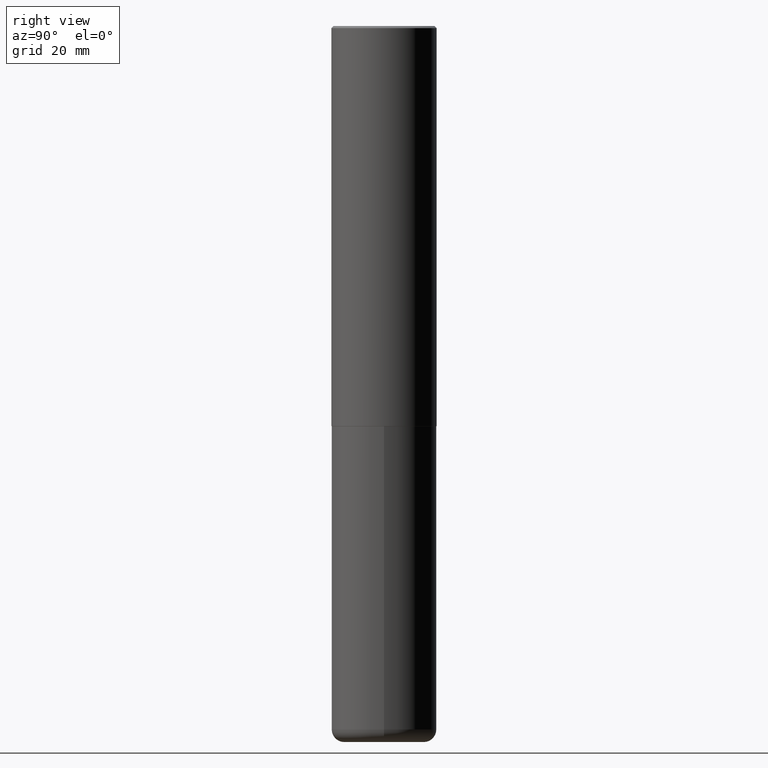
[diagram: clean part render]
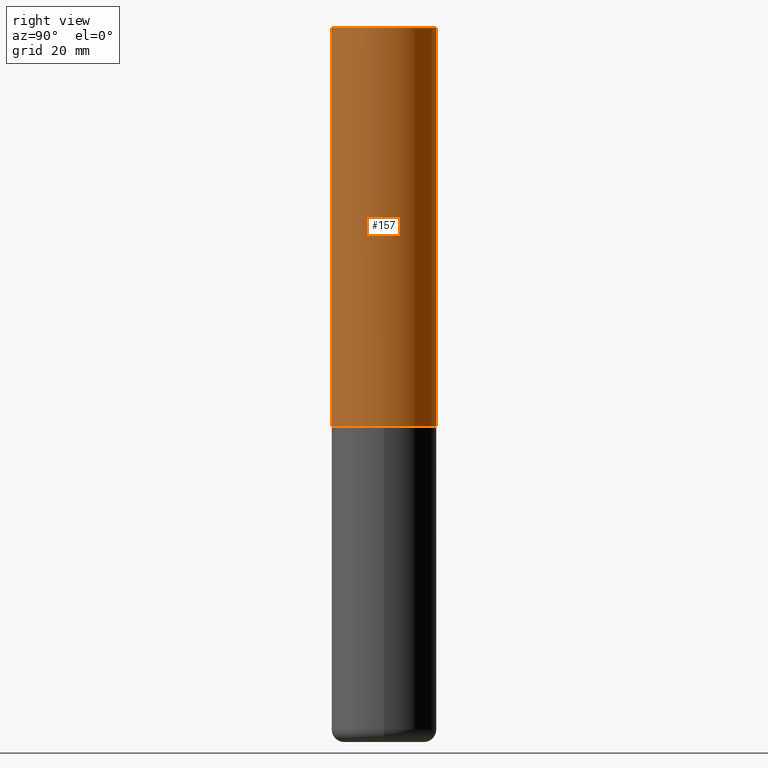
[diagram: same view with one face highlighted and labeled with its STEP entity id]
A machine part, right view. The second image highlights one B-rep face of the part: STEP entity #157.
In plain terms, the highlighted cylindrical surface (partial cylindrical patch) has radius 12.5006 mm, axis along (-0, 0, 1).
Its self-contained STEP definition (entity closure, byte-faithful):
#4 = EDGE_CURVE ( 'NONE', #90, #194, #148, .T. ) ;
#28 = AXIS2_PLACEMENT_3D ( 'NONE', #222, #156, #353 ) ;
#42 = CARTESIAN_POINT ( 'NONE',  ( 0.000000000000000000, 0.000000000000000000, 0.000000000000000000 ) ) ;
#54 = CIRCLE ( 'NONE', #335, 0.4921500000000003650 ) ;
#75 = EDGE_CURVE ( 'NONE', #79, #178, #320, .T. ) ;
#76 = VECTOR ( 'NONE', #315, 39.37007874015748143 ) ;
#79 = VERTEX_POINT ( 'NONE', #247 ) ;
#90 = VERTEX_POINT ( 'NONE', #376 ) ;
#108 = EDGE_CURVE ( 'NONE', #178, #194, #250, .T. ) ;
#117 = DIRECTION ( 'NONE',  ( -2.445976594451651672E-29, 3.490754157143982552E-15, 1.000000000000000000 ) ) ;
#123 = CARTESIAN_POINT ( 'NONE',  ( 3.436665081823295777E-15, 0.4921499999999998098, -0.02000000000000182188 ) ) ;
#125 = EDGE_LOOP ( 'NONE', ( #265, #277, #382, #139 ) ) ;
#139 = ORIENTED_EDGE ( 'NONE', *, *, #75, .F. ) ;
#148 = LINE ( 'NONE', #281, #76 ) ;
#156 = DIRECTION ( 'NONE',  ( -2.445976594451651952E-29, 3.490754157143982552E-15, 1.000000000000000000 ) ) ;
#157 = ADVANCED_FACE ( 'NONE', ( #243 ), #332, .T. ) ;
#169 = DIRECTION ( 'NONE',  ( -6.982962677686265922E-15, -1.000000000000000000, 3.490754157143982552E-15 ) ) ;
#178 = VERTEX_POINT ( 'NONE', #415 ) ;
#194 = VERTEX_POINT ( 'NONE', #123 ) ;
#218 = VECTOR ( 'NONE', #117, 39.37007874015748143 ) ;
#222 = CARTESIAN_POINT ( 'NONE',  ( 4.891953188903329688E-31, -6.981508314288001687E-17, -0.02000000000000010797 ) ) ;
#243 = FACE_OUTER_BOUND ( 'NONE', #125, .T. ) ;
#247 = CARTESIAN_POINT ( 'NONE',  ( -3.436665081823207030E-15, -0.4921500000000134101, -3.739099999999998758 ) ) ;
#250 = CIRCLE ( 'NONE', #28, 0.4921499999999999209 ) ;
#253 = DIRECTION ( 'NONE',  ( -2.445976594451651952E-29, 3.490754157143982552E-15, 1.000000000000000000 ) ) ;
#265 = ORIENTED_EDGE ( 'NONE', *, *, #345, .T. ) ;
#277 = ORIENTED_EDGE ( 'NONE', *, *, #4, .T. ) ;
#281 = CARTESIAN_POINT ( 'NONE',  ( 3.496936074043333291E-15, 0.4921500000000000874, -1.717974658438411319E-15 ) ) ;
#282 = CARTESIAN_POINT ( 'NONE',  ( -3.436665081823296565E-15, -0.4921500000000000874, 1.717974658438411319E-15 ) ) ;
#315 = DIRECTION ( 'NONE',  ( -2.445976594451651672E-29, 3.490754157143982552E-15, 1.000000000000000000 ) ) ;
#320 = LINE ( 'NONE', #282, #218 ) ;
#332 = CYLINDRICAL_SURFACE ( 'NONE', #365, 0.4921500000000000874 ) ;
#333 = DIRECTION ( 'NONE',  ( -2.445976594451651952E-29, 3.490754157143982552E-15, 1.000000000000000000 ) ) ;
#335 = AXIS2_PLACEMENT_3D ( 'NONE', #380, #253, #383 ) ;
#345 = EDGE_CURVE ( 'NONE', #79, #90, #54, .T. ) ;
#353 = DIRECTION ( 'NONE',  ( -6.982962677686265922E-15, -1.000000000000000000, 3.486624039460257331E-15 ) ) ;
#365 = AXIS2_PLACEMENT_3D ( 'NONE', #42, #333, #169 ) ;
#376 = CARTESIAN_POINT ( 'NONE',  ( 3.496936074043380229E-15, 0.4921499999999873198, -3.739100000000002311 ) ) ;
#380 = CARTESIAN_POINT ( 'NONE',  ( 9.145751084314172604E-29, -1.305227886897706845E-14, -3.739100000000000534 ) ) ;
#382 = ORIENTED_EDGE ( 'NONE', *, *, #108, .F. ) ;
#383 = DIRECTION ( 'NONE',  ( -6.982962677686265922E-15, -1.000000000000000000, 3.330506545156063496E-15 ) ) ;
#415 = CARTESIAN_POINT ( 'NONE',  ( -3.376394089603257868E-15, -0.4921499999999999764, -0.01999999999999839059 ) ) ;